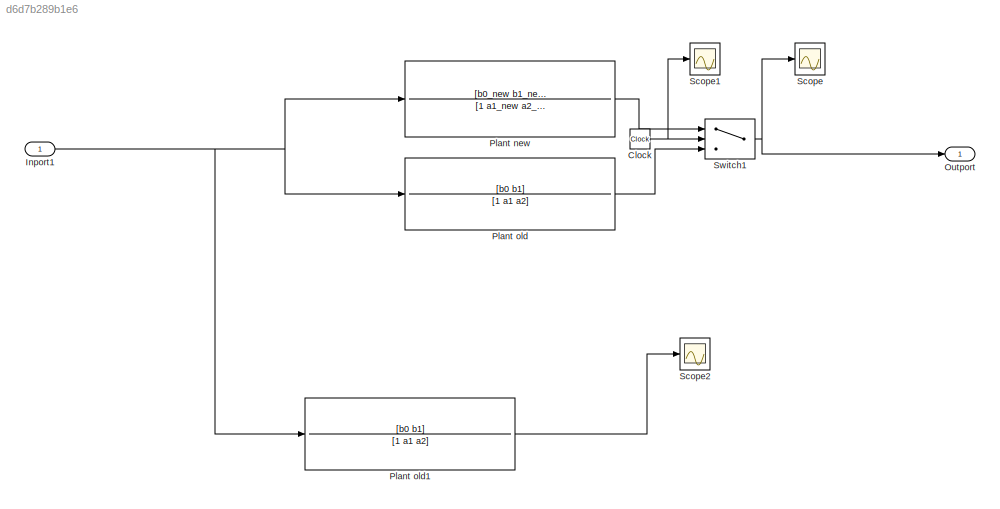
MODEL slx_d6d7b289b1e6
KIND model
CONFIG AbsTol = auto
CONFIG EnableMultiTasking = off
CONFIG FixedStep = auto
CONFIG MaxStep = auto
CONFIG MinStep = auto
CONFIG RelTol = 1e-3
CONFIG SampleTimeConstraint = Unconstrained
CONFIG SolverName = VariableStepAuto
CONFIG StartTime = 0.0
CONFIG StopTime = 10.0
BLOCK [Clock] Clock
BLOCK [Inport] Inport1
BLOCK [Outport] Outport
BLOCK [TransferFcn] Plant new
  Denominator = [1 a1_new a2_new]
  Numerator = [b0_new b1_new]
BLOCK [TransferFcn] Plant old
  Denominator = [1 a1 a2]
  Numerator = [b0 b1]
BLOCK [TransferFcn] Plant old1
  Commented = on
  Denominator = [1 a1 a2]
  Numerator = [b0 b1]
BLOCK [Scope] Scope
  Floating = off
  NumInputPorts = 1
  ScopeSpecificationString = Simulink.scopes.TimeScopeBlockCfg('CurrentConfiguration', extmgr.ConfigurationSet(extmgr.Configuration('Core','General UI',true),extmgr.Configuration('Core','Source UI',true),extmgr.Configuration('Sources','WiredSimulink',true),extmgr.Configuration('Visuals','Time Domain',true,'SerializedDisplays',{struct('MinYLimReal','-18.54078','MaxYLimReal','37.33406','YLabelReal','','MinYLimMag','0.00000','Ma...<+1449ch>
BLOCK [Scope] Scope1
  Floating = off
  NumInputPorts = 1
  ScopeSpecificationString = Simulink.scopes.TimeScopeBlockCfg('CurrentConfiguration', extmgr.ConfigurationSet(extmgr.Configuration('Core','General UI',true),extmgr.Configuration('Core','Source UI',true),extmgr.Configuration('Sources','WiredSimulink',true,'DataLoggingVariableName','ScopeData1'),extmgr.Configuration('Visuals','Time Domain',true,'SerializedDisplays',{struct('MinYLimReal','-23.83908','MaxYLimReal','214.55172','Y...<+1490ch>
BLOCK [Scope] Scope2
  Commented = on
  Floating = off
  NumInputPorts = 1
  ScopeSpecificationString = Simulink.scopes.TimeScopeBlockCfg('CurrentConfiguration', extmgr.ConfigurationSet(extmgr.Configuration('Core','General UI',true),extmgr.Configuration('Core','Source UI',true),extmgr.Configuration('Sources','WiredSimulink',true,'DataLoggingVariableName','ScopeData2'),extmgr.Configuration('Visuals','Time Domain',true,'SerializedDisplays',{struct('MinYLimReal','-12.5628','MaxYLimReal','12.56876','YLa...<+1486ch>
BLOCK [Switch] Switch1
  InputSameDT = off
  SaturateOnIntegerOverflow = off
  Threshold = 100
NET Clock:1 -> Scope1:1, Switch1:2
NET Inport1:1 -> Plant new:1, Plant old1:1, Plant old:1
LINE Plant new:1 -> Switch1:1
LINE Plant old1:1 -> Scope2:1
LINE Plant old:1 -> Switch1:3
NET Switch1:1 -> Outport:1, Scope:1
note: NET lines group one-source signal fan-out (src -> all destinations, sorted); 1:1 wires keep LINE
